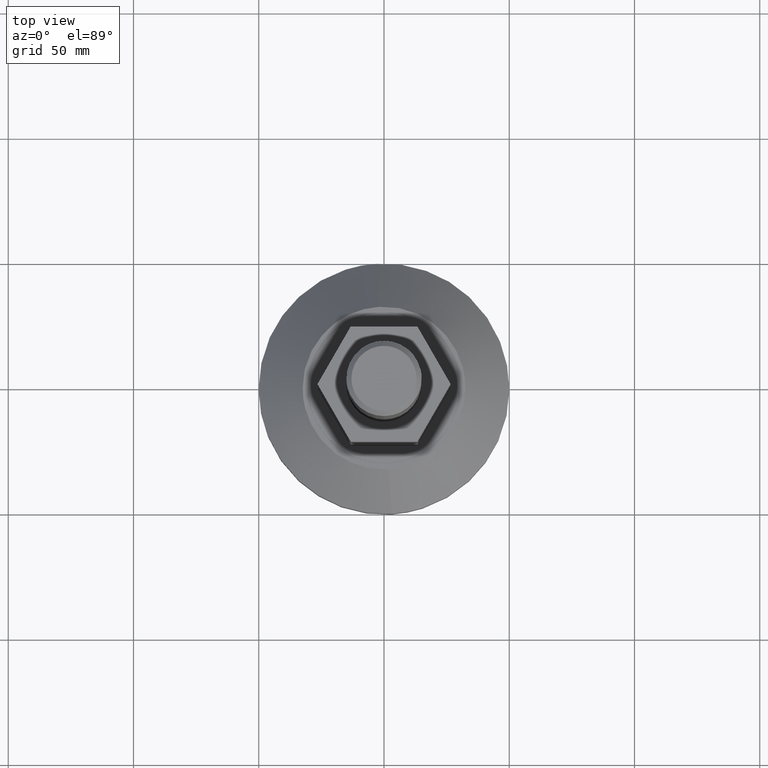
[diagram: clean part render]
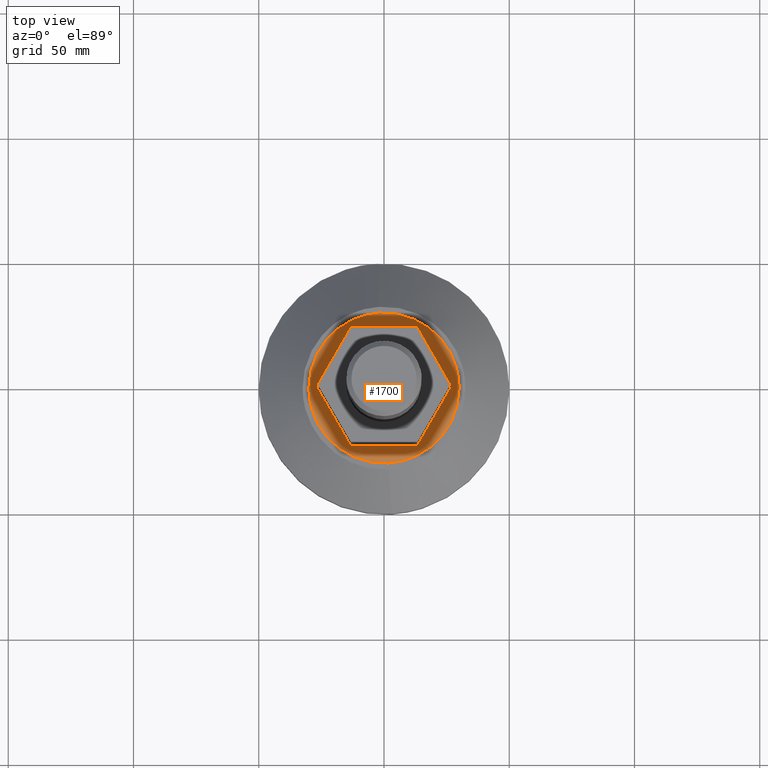
[diagram: same view with one face highlighted and labeled with its STEP entity id]
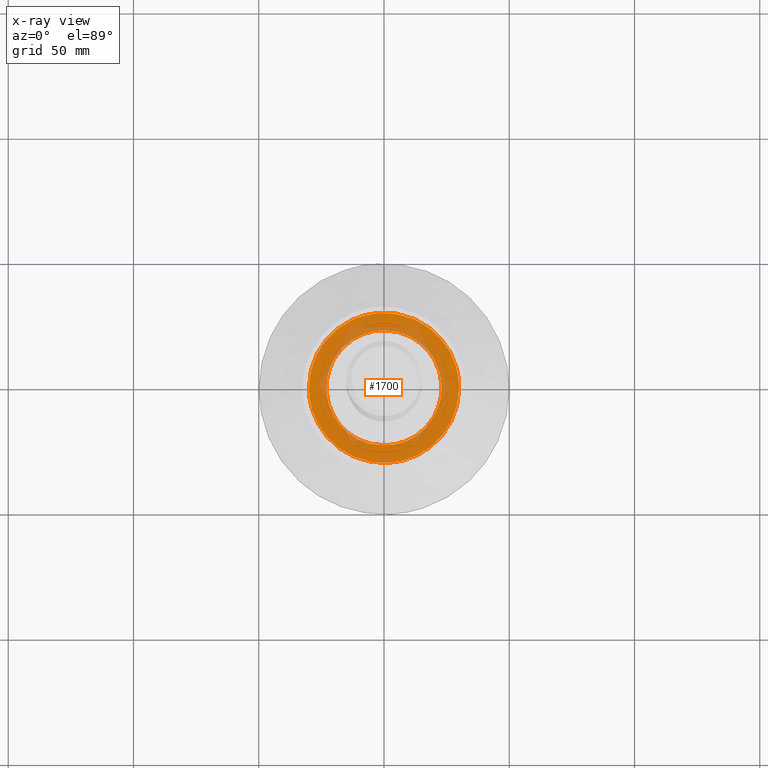
[diagram: x-ray of the same camera — body ghosted, the highlighted face saturated]
A machine part, top view. The second image highlights one B-rep face of the part: STEP entity #1700.
The next image is the same camera in x-ray: the body ghosted, the highlighted face saturated — about 19% of this face is hidden behind the body in this view.
In plain terms, the highlighted face is a freeform B-spline surface patch.
Its self-contained STEP definition (entity closure, byte-faithful):
#1149=CARTESIAN_POINT('',(19.918584287042449,11.500000000000000,36.500000000000000));
#1150=VERTEX_POINT('',#1149);
#1202=CARTESIAN_POINT('',(19.918584287042499,-11.500000000000240,36.500000000000000));
#1203=VERTEX_POINT('',#1202);
#1249=CARTESIAN_POINT('',(2.131628E-013,-22.999999999999702,36.500000000000000));
#1250=VERTEX_POINT('',#1249);
#1301=CARTESIAN_POINT('',(-19.918584287041799,-11.500000000000000,36.500000000000000));
#1302=VERTEX_POINT('',#1301);
#1348=CARTESIAN_POINT('',(-19.918584287041799,11.500000000000000,36.500000000000000));
#1349=VERTEX_POINT('',#1348);
#1389=CARTESIAN_POINT('',(2.131628E-013,23.000000000000352,36.500000000000000));
#1390=VERTEX_POINT('',#1389);
#1443=CARTESIAN_POINT('',(19.918584287042449,11.500000000000000,36.500000000000000));
#1444=CARTESIAN_POINT('',(26.558112384204549,-1.058181E-013,36.500000000000007));
#1445=CARTESIAN_POINT('',(19.918584288153401,-11.500000000641620,36.500000000000000));
#1453=(BOUNDED_CURVE()B_SPLINE_CURVE(2,(#1443,#1444,#1445),.UNSPECIFIED.,.F.,.U.)CURVE()GEOMETRIC_REPRESENTATION_ITEM()QUASI_UNIFORM_CURVE()RATIONAL_B_SPLINE_CURVE((1.0,0.866025403784438,1.0))REPRESENTATION_ITEM(''));
#1454=EDGE_CURVE('',#1150,#1203,#1453,.T.);
#1475=CARTESIAN_POINT('',(19.918584287042499,-11.500000000000240,36.500000000000000));
#1476=CARTESIAN_POINT('',(13.279056192102313,-23.000000001283052,36.500000000000000));
#1477=CARTESIAN_POINT('',(2.131628E-013,-23.000000001283048,36.500000000000000));
#1485=(BOUNDED_CURVE()B_SPLINE_CURVE(2,(#1475,#1476,#1477),.UNSPECIFIED.,.F.,.U.)CURVE()GEOMETRIC_REPRESENTATION_ITEM()QUASI_UNIFORM_CURVE()RATIONAL_B_SPLINE_CURVE((1.0,0.866025403784440,1.0))REPRESENTATION_ITEM(''));
#1486=EDGE_CURVE('',#1203,#1250,#1485,.T.);
#1508=CARTESIAN_POINT('',(2.131628E-013,-22.999999999999702,36.500000000000000));
#1509=CARTESIAN_POINT('',(-13.279056192101917,-23.000000001283048,36.499999999999986));
#1510=CARTESIAN_POINT('',(-19.918584288152999,-11.500000000641570,36.500000000000000));
#1518=(BOUNDED_CURVE()B_SPLINE_CURVE(2,(#1508,#1509,#1510),.UNSPECIFIED.,.F.,.U.)CURVE()GEOMETRIC_REPRESENTATION_ITEM()QUASI_UNIFORM_CURVE()RATIONAL_B_SPLINE_CURVE((1.0,0.866025403784439,1.0))REPRESENTATION_ITEM(''));
#1519=EDGE_CURVE('',#1250,#1302,#1518,.T.);
#1540=CARTESIAN_POINT('',(-19.918584287041799,-11.500000000000000,36.500000000000000));
#1541=CARTESIAN_POINT('',(-26.558112384204147,-5.204170E-015,36.500000000000007));
#1542=CARTESIAN_POINT('',(-19.918584288153010,11.500000000641560,36.500000000000000));
#1550=(BOUNDED_CURVE()B_SPLINE_CURVE(2,(#1540,#1541,#1542),.UNSPECIFIED.,.F.,.U.)CURVE()GEOMETRIC_REPRESENTATION_ITEM()QUASI_UNIFORM_CURVE()RATIONAL_B_SPLINE_CURVE((1.0,0.866025403784438,1.0))REPRESENTATION_ITEM(''));
#1551=EDGE_CURVE('',#1302,#1349,#1550,.T.);
#1571=CARTESIAN_POINT('',(2.131628E-013,23.000000000000352,36.500000000000000));
#1572=CARTESIAN_POINT('',(13.279056192102423,23.000000001283045,36.499999999999986));
#1573=CARTESIAN_POINT('',(19.918584288153490,11.500000000641460,36.500000000000000));
#1581=(BOUNDED_CURVE()B_SPLINE_CURVE(2,(#1571,#1572,#1573),.UNSPECIFIED.,.F.,.U.)CURVE()GEOMETRIC_REPRESENTATION_ITEM()QUASI_UNIFORM_CURVE()RATIONAL_B_SPLINE_CURVE((1.0,0.866025403784438,1.0))REPRESENTATION_ITEM(''));
#1582=EDGE_CURVE('',#1390,#1150,#1581,.T.);
#1604=CARTESIAN_POINT('',(-19.918584287041799,11.500000000000000,36.500000000000000));
#1605=CARTESIAN_POINT('',(-13.279056192101930,23.000000001283048,36.499999999999986));
#1606=CARTESIAN_POINT('',(2.131628E-013,23.000000001283048,36.500000000000000));
#1614=(BOUNDED_CURVE()B_SPLINE_CURVE(2,(#1604,#1605,#1606),.UNSPECIFIED.,.F.,.U.)CURVE()GEOMETRIC_REPRESENTATION_ITEM()QUASI_UNIFORM_CURVE()RATIONAL_B_SPLINE_CURVE((1.0,0.866025403784439,1.0))REPRESENTATION_ITEM(''));
#1615=EDGE_CURVE('',#1349,#1390,#1614,.T.);
#1621=CARTESIAN_POINT('',(-32.996999883707439,-32.996261619274847,36.500000000000000));
#1622=CARTESIAN_POINT('',(32.997001493033260,-32.996261619274847,36.500000000000000));
#1623=CARTESIAN_POINT('',(-32.996999883707439,32.996260546391262,36.500000000000000));
#1624=CARTESIAN_POINT('',(32.997001493033260,32.996260546391262,36.500000000000000));
#1625=B_SPLINE_SURFACE_WITH_KNOTS('',1,1,((#1621,#1623),(#1622,#1624)),.UNSPECIFIED.,.F.,.F.,.U.,(2,2),(2,2),(0.0,65.994001376740698),(0.0,65.992522165666117),.UNSPECIFIED.);
#1626=CARTESIAN_POINT('',(1.831418602471763,-29.944046251317879,36.500000000013607));
#1627=VERTEX_POINT('',#1626);
#1628=CARTESIAN_POINT('',(-29.999999999999140,0.0,36.500000000000000));
#1629=VERTEX_POINT('',#1628);
#1630=CARTESIAN_POINT('',(1.831418602471763,-29.944046251317872,36.500000000013614));
#1631=CARTESIAN_POINT('',(0.916564054480846,-29.999999999976097,36.500000000013429));
#1632=CARTESIAN_POINT('',(-1.180444E-012,-29.999999999976460,36.500000000013223));
#1633=CARTESIAN_POINT('',(-29.999999999999819,-29.999999999988251,36.500000000006409));
#1634=CARTESIAN_POINT('',(-29.999999999999140,0.0,36.500000000000000));
#1642=(BOUNDED_CURVE()B_SPLINE_CURVE(2,(#1630,#1631,#1632,#1633,#1634),.UNSPECIFIED.,.F.,.U.)B_SPLINE_CURVE_WITH_KNOTS((3,2,3),(0.739333178810115,0.750000000000000,1.0),.UNSPECIFIED.)CURVE()GEOMETRIC_REPRESENTATION_ITEM()RATIONAL_B_SPLINE_CURVE((0.976072505820406,0.987503041628748,1.0,0.707106781186548,1.0))REPRESENTATION_ITEM(''));
#1643=EDGE_CURVE('',#1627,#1629,#1642,.T.);
#1644=ORIENTED_EDGE('',*,*,#1643,.F.);
#1645=CARTESIAN_POINT('',(29.999999999999559,0.0,36.500000000000000));
#1646=VERTEX_POINT('',#1645);
#1647=CARTESIAN_POINT('',(29.999999999999559,0.0,36.500000000000000));
#1648=CARTESIAN_POINT('',(29.999999999998856,-28.221217494531540,36.500000000006814));
#1649=CARTESIAN_POINT('',(1.831418602471763,-29.944046251317872,36.500000000013614));
#1657=(BOUNDED_CURVE()B_SPLINE_CURVE(2,(#1647,#1648,#1649),.UNSPECIFIED.,.F.,.U.)B_SPLINE_CURVE_WITH_KNOTS((3,3),(0.500000000000000,0.739333178810115),.UNSPECIFIED.)CURVE()GEOMETRIC_REPRESENTATION_ITEM()RATIONAL_B_SPLINE_CURVE((1.0,0.719603739557799,0.976072505820406))REPRESENTATION_ITEM(''));
#1658=EDGE_CURVE('',#1646,#1627,#1657,.T.);
#1659=ORIENTED_EDGE('',*,*,#1658,.F.);
#1660=CARTESIAN_POINT('',(-1.831418602471341,29.944046251317879,36.500000000013600));
#1661=VERTEX_POINT('',#1660);
#1662=CARTESIAN_POINT('',(-1.831418602471340,29.944046251317875,36.500000000013607));
#1663=CARTESIAN_POINT('',(-0.916564054480419,29.999999999976108,36.500000000013408));
#1664=CARTESIAN_POINT('',(1.612156E-012,29.999999999976470,36.500000000013202));
#1665=CARTESIAN_POINT('',(30.000000000000245,29.999999999988251,36.500000000006395));
#1666=CARTESIAN_POINT('',(29.999999999999559,0.0,36.500000000000000));
#1674=(BOUNDED_CURVE()B_SPLINE_CURVE(2,(#1662,#1663,#1664,#1665,#1666),.UNSPECIFIED.,.F.,.U.)B_SPLINE_CURVE_WITH_KNOTS((3,2,3),(0.239333178810115,0.250000000000000,0.500000000000000),.UNSPECIFIED.)CURVE()GEOMETRIC_REPRESENTATION_ITEM()RATIONAL_B_SPLINE_CURVE((0.976072505820406,0.987503041628748,1.0,0.707106781186548,1.0))REPRESENTATION_ITEM(''));
#1675=EDGE_CURVE('',#1661,#1646,#1674,.T.);
#1676=ORIENTED_EDGE('',*,*,#1675,.F.);
#1677=CARTESIAN_POINT('',(-29.999999999999140,0.0,36.500000000000000));
#1678=CARTESIAN_POINT('',(-29.999999999998426,28.221217494531540,36.500000000006814));
#1679=CARTESIAN_POINT('',(-1.831418602471340,29.944046251317875,36.500000000013607));
#1687=(BOUNDED_CURVE()B_SPLINE_CURVE(2,(#1677,#1678,#1679),.UNSPECIFIED.,.F.,.U.)B_SPLINE_CURVE_WITH_KNOTS((3,3),(0.0,0.239333178810115),.UNSPECIFIED.)CURVE()GEOMETRIC_REPRESENTATION_ITEM()RATIONAL_B_SPLINE_CURVE((1.0,0.719603739557799,0.976072505820406))REPRESENTATION_ITEM(''));
#1688=EDGE_CURVE('',#1629,#1661,#1687,.T.);
#1689=ORIENTED_EDGE('',*,*,#1688,.F.);
#1690=EDGE_LOOP('',(#1644,#1659,#1676,#1689));
#1691=FACE_OUTER_BOUND('',#1690,.T.);
#1692=ORIENTED_EDGE('',*,*,#1582,.T.);
#1693=ORIENTED_EDGE('',*,*,#1454,.T.);
#1694=ORIENTED_EDGE('',*,*,#1486,.T.);
#1695=ORIENTED_EDGE('',*,*,#1519,.T.);
#1696=ORIENTED_EDGE('',*,*,#1551,.T.);
#1697=ORIENTED_EDGE('',*,*,#1615,.T.);
#1698=EDGE_LOOP('',(#1692,#1693,#1694,#1695,#1696,#1697));
#1699=FACE_BOUND('',#1698,.T.);
#1700=ADVANCED_FACE('',(#1691,#1699),#1625,.T.);